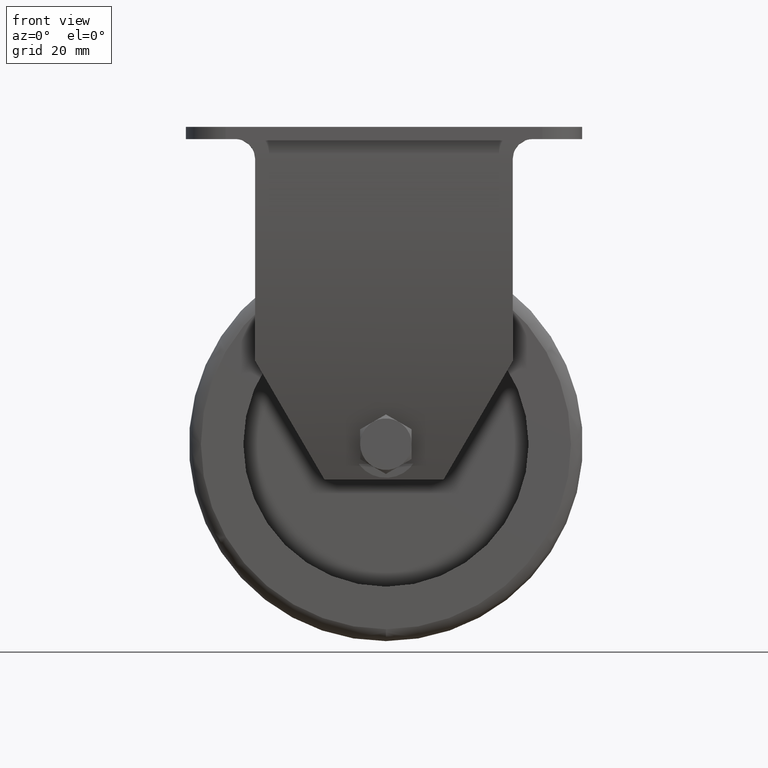
[diagram: clean part render]
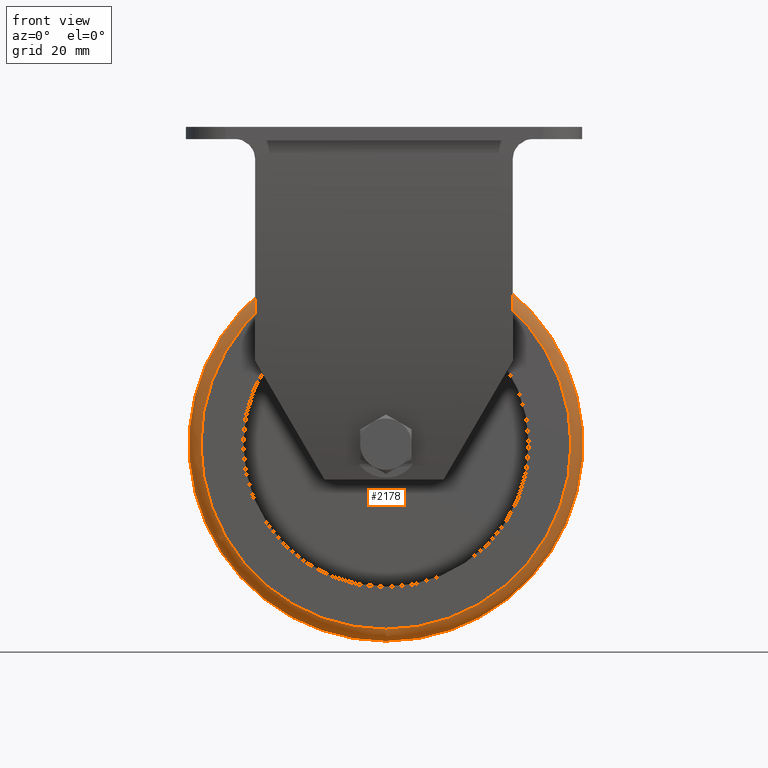
[diagram: same view with one face highlighted and labeled with its STEP entity id]
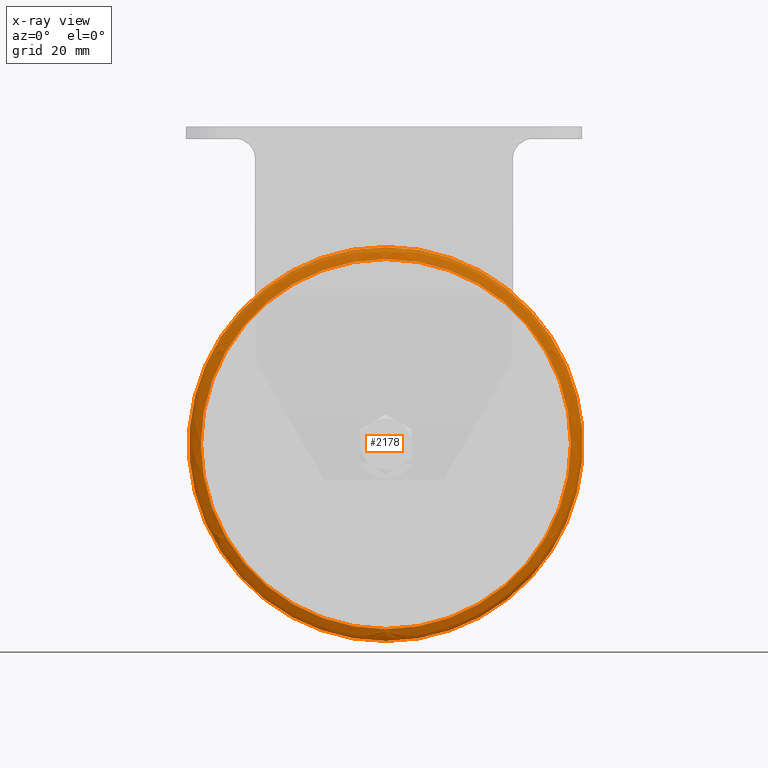
[diagram: x-ray of the same camera — body ghosted, the highlighted face saturated]
A machine part, front view. The second image highlights one B-rep face of the part: STEP entity #2178.
The next image is the same camera in x-ray: the body ghosted, the highlighted face saturated — about 2% of this face is hidden behind the body in this view.
In plain terms, the highlighted face is a freeform B-spline surface patch.
Its self-contained STEP definition (entity closure, byte-faithful):
#1814=CARTESIAN_POINT('',(-49.499989609626937,-11.999999999942840,-129.775115933132840));
#1815=VERTEX_POINT('',#1814);
#1816=CARTESIAN_POINT('',(-49.499989609626937,-11.999999999942828,-30.375038781330367));
#1817=VERTEX_POINT('',#1816);
#1818=CARTESIAN_POINT('',(-49.499989609626937,-11.999999999942833,-80.075077357231748));
#1819=DIRECTION('',(-3.157968E-016,1.0,-1.224647E-016));
#1820=DIRECTION('',(0.0,-1.224647E-016,-1.0));
#1821=AXIS2_PLACEMENT_3D('',#1818,#1819,#1820);
#1822=CIRCLE('',#1821,49.700038575901381);
#1823=EDGE_CURVE('',#1815,#1817,#1822,.T.);
#1825=CARTESIAN_POINT('',(-49.499989609626937,-11.999999999942833,-80.075077357231748));
#1826=DIRECTION('',(-3.157968E-016,1.0,-1.224647E-016));
#1827=DIRECTION('',(0.0,-1.224647E-016,-1.0));
#1828=AXIS2_PLACEMENT_3D('',#1825,#1826,#1827);
#1829=CIRCLE('',#1828,49.700038575901381);
#1830=EDGE_CURVE('',#1817,#1815,#1829,.T.);
#1865=CARTESIAN_POINT('',(-49.499989609626937,-14.999999999942828,-33.375038781330367));
#1866=VERTEX_POINT('',#1865);
#1867=CARTESIAN_POINT('',(-49.499989609626937,-14.999999999942840,-126.775115933132840));
#1868=VERTEX_POINT('',#1867);
#1869=CARTESIAN_POINT('',(-49.499989609626937,-14.999999999942833,-80.075077357231748));
#1870=DIRECTION('',(-3.157968E-016,1.0,-1.224647E-016));
#1871=DIRECTION('',(0.0,-1.224647E-016,-1.0));
#1872=AXIS2_PLACEMENT_3D('',#1869,#1870,#1871);
#1873=CIRCLE('',#1872,46.700038575901381);
#1874=EDGE_CURVE('',#1866,#1868,#1873,.T.);
#1876=CARTESIAN_POINT('',(-49.499989609626937,-14.999999999942833,-80.075077357231748));
#1877=DIRECTION('',(-3.157968E-016,1.0,-1.224647E-016));
#1878=DIRECTION('',(0.0,-1.224647E-016,-1.0));
#1879=AXIS2_PLACEMENT_3D('',#1876,#1877,#1878);
#1880=CIRCLE('',#1879,46.700038575901381);
#1881=EDGE_CURVE('',#1868,#1866,#1880,.T.);
#1890=CARTESIAN_POINT('',(-49.499989609626937,-11.999999999942840,-129.775115933133120));
#1891=CARTESIAN_POINT('',(-49.499989609626937,-12.390180643975096,-129.775115933133120));
#1892=CARTESIAN_POINT('',(-49.499989609626937,-13.179083451972669,-129.618999604785810));
#1893=CARTESIAN_POINT('',(-49.499989609626951,-14.176238734361682,-128.951354667551980));
#1894=CARTESIAN_POINT('',(-49.499989609626937,-14.843883671595499,-127.954199385162940));
#1895=CARTESIAN_POINT('',(-49.499989609626937,-14.999999999942840,-127.165296577165380));
#1896=CARTESIAN_POINT('',(-49.499989609626937,-14.999999999942840,-126.775115933133120));
#1897=CARTESIAN_POINT('',(-52.747626713279402,-11.999999999942842,-129.775115933133120));
#1898=CARTESIAN_POINT('',(-52.747626713279402,-12.390180643975096,-129.775115933133120));
#1899=CARTESIAN_POINT('',(-52.737425329237169,-13.179083451972669,-129.618999604785810));
#1900=CARTESIAN_POINT('',(-52.693798230901734,-14.176238734361682,-128.951354667551980));
#1901=CARTESIAN_POINT('',(-52.628639358072185,-14.843883671595499,-127.954199385162940));
#1902=CARTESIAN_POINT('',(-52.577088693246942,-14.999999999942840,-127.165296577165380));
#1903=CARTESIAN_POINT('',(-52.551592432620282,-14.999999999942842,-126.775115933133120));
#1904=CARTESIAN_POINT('',(-59.259826415704694,-11.999999999942844,-129.134991146755060));
#1905=CARTESIAN_POINT('',(-59.259826415704694,-12.390180643975096,-129.134991146755060));
#1906=CARTESIAN_POINT('',(-59.229169097700691,-13.179083451972666,-128.980885559932290));
#1907=CARTESIAN_POINT('',(-59.098060434236466,-14.176238734361682,-128.321839732177380));
#1908=CARTESIAN_POINT('',(-58.902244231567437,-14.843883671595497,-127.337527574872650));
#1909=CARTESIAN_POINT('',(-58.747323573907337,-14.999999999942842,-126.558785649158340));
#1910=CARTESIAN_POINT('',(-58.670701914855115,-14.999999999942846,-126.173630439885640));
#1911=CARTESIAN_POINT('',(-67.082761094596748,-11.999999999942847,-126.760024867695280));
#1912=CARTESIAN_POINT('',(-67.082761094596748,-12.390180643975105,-126.760024867695280));
#1913=CARTESIAN_POINT('',(-67.027530599710644,-13.179083451972680,-126.613379456479150));
#1914=CARTESIAN_POINT('',(-66.791332626814764,-14.176238734361695,-125.986237712860810));
#1915=CARTESIAN_POINT('',(-66.438561201124514,-14.843883671595499,-125.049575622608760));
#1916=CARTESIAN_POINT('',(-66.159464882603814,-14.999999999942846,-124.308532210218260));
#1917=CARTESIAN_POINT('',(-66.021427623509936,-14.999999999942846,-123.942022175051460));
#1918=CARTESIAN_POINT('',(-72.965853382425479,-11.999999999942844,-123.977099329290750));
#1919=CARTESIAN_POINT('',(-72.965853382425479,-12.390180643975100,-123.977099329290750));
#1920=CARTESIAN_POINT('',(-72.892143087651505,-13.179083451972673,-123.839195563545490));
#1921=CARTESIAN_POINT('',(-72.576914657359609,-14.176238734361689,-123.249438220415730));
#1922=CARTESIAN_POINT('',(-72.106107980195105,-14.843883671595508,-122.368611275982940));
#1923=CARTESIAN_POINT('',(-71.733627669255782,-14.999999999942844,-121.671742029943370));
#1924=CARTESIAN_POINT('',(-71.549403952293048,-14.999999999942844,-121.327079939164180));
#1925=CARTESIAN_POINT('',(-77.156265007659954,-11.999999999942851,-121.465640681328620));
#1926=CARTESIAN_POINT('',(-77.156265007659954,-12.390180643975109,-121.465640681328620));
#1927=CARTESIAN_POINT('',(-77.069391912696247,-13.179083451972671,-121.335625837084220));
#1928=CARTESIAN_POINT('',(-76.697871632605512,-14.176238734361695,-120.779606146870380));
#1929=CARTESIAN_POINT('',(-76.142990753343426,-14.843883671595499,-119.949167780174820));
#1930=CARTESIAN_POINT('',(-75.703994850212638,-14.999999999942849,-119.292163629541890));
#1931=CARTESIAN_POINT('',(-75.486873422231085,-14.999999999942849,-118.967218275022930));
#1932=CARTESIAN_POINT('',(-81.080196320876851,-11.999999999942847,-118.555232925542850));
#1933=CARTESIAN_POINT('',(-81.080196320876851,-12.390180643975103,-118.555232925542850));
#1934=CARTESIAN_POINT('',(-80.980997485997051,-13.179083451972673,-118.434360170235390));
#1935=CARTESIAN_POINT('',(-80.556765116531935,-14.176238734361691,-117.917437411515220));
#1936=CARTESIAN_POINT('',(-79.923156555182999,-14.843883671595513,-117.145391926409670));
#1937=CARTESIAN_POINT('',(-79.421874977431344,-14.999999999942851,-116.534585503520090));
#1938=CARTESIAN_POINT('',(-79.173947898371836,-14.999999999942851,-116.232488919446500));
#1939=CARTESIAN_POINT('',(-85.902510515728565,-11.999999999942855,-114.185273008425270));
#1940=CARTESIAN_POINT('',(-85.902510515728565,-12.390180643975105,-114.185273008425270));
#1941=CARTESIAN_POINT('',(-85.788163966524792,-13.179083451972673,-114.078127045225590));
#1942=CARTESIAN_POINT('',(-85.299151090842841,-14.176238734361691,-113.619908096365220));
#1943=CARTESIAN_POINT('',(-84.568790168519655,-14.843883671595503,-112.935539175303550));
#1944=CARTESIAN_POINT('',(-83.990962629871817,-14.999999999942846,-112.394098365565000));
#1945=CARTESIAN_POINT('',(-83.705176955282255,-14.999999999942844,-112.126309074276560));
#1946=CARTESIAN_POINT('',(-91.091389668645718,-11.999999999942847,-107.864177520596770));
#1947=CARTESIAN_POINT('',(-91.091389668645718,-12.390180643975102,-107.864177520596770));
#1948=CARTESIAN_POINT('',(-90.960743961839626,-13.179083451972666,-107.776887200309550));
#1949=CARTESIAN_POINT('',(-90.402026333492870,-14.176238734361682,-107.403582620152690));
#1950=CARTESIAN_POINT('',(-89.567558484791448,-14.843883671595501,-106.846036815064040));
#1951=CARTESIAN_POINT('',(-88.907366395704898,-14.999999999942847,-106.404932546762080));
#1952=CARTESIAN_POINT('',(-88.580844330003742,-14.999999999942853,-106.186768349922260));
#1953=CARTESIAN_POINT('',(-95.712573632165999,-11.999999999942847,-99.217263162531026));
#1954=CARTESIAN_POINT('',(-95.712573632165999,-12.390180643975107,-99.217263162531026));
#1955=CARTESIAN_POINT('',(-95.567411995520132,-13.179083451972687,-99.157134280339037));
#1956=CARTESIAN_POINT('',(-94.946615741770302,-14.176238734361698,-98.899987931831134));
#1957=CARTESIAN_POINT('',(-94.019430902657035,-14.843883671595504,-98.515929242156687));
#1958=CARTESIAN_POINT('',(-93.285885449879785,-14.999999999942847,-98.212079897855915));
#1959=CARTESIAN_POINT('',(-92.923083803986259,-14.999999999942844,-98.061800127463187));
#1960=CARTESIAN_POINT('',(-98.559343892231922,-11.999999999942853,-89.833522078089459));
#1961=CARTESIAN_POINT('',(-98.559343892231922,-12.390180643975107,-89.833522078089459));
#1962=CARTESIAN_POINT('',(-98.405240062916064,-13.179083451972675,-89.802869132863393));
#1963=CARTESIAN_POINT('',(-97.746201751291451,-14.176238734361696,-89.671779169961169));
#1964=CARTESIAN_POINT('',(-96.761900819637518,-14.843883671595513,-89.475990897353540));
#1965=CARTESIAN_POINT('',(-95.983167775135200,-14.999999999942855,-89.321092336656946));
#1966=CARTESIAN_POINT('',(-95.598016958389678,-14.999999999942855,-89.244481606463580));
#1967=CARTESIAN_POINT('',(-99.520386080968805,-11.999999999942849,-80.075091848421238));
#1968=CARTESIAN_POINT('',(-99.520386080968805,-12.390180643975103,-80.075091848421238));
#1969=CARTESIAN_POINT('',(-99.363263453636080,-13.179083451972673,-80.075091802901909));
#1970=CARTESIAN_POINT('',(-98.691314992036467,-14.176238734361691,-80.075091608234715));
#1971=CARTESIAN_POINT('',(-97.687732218304362,-14.843883671595501,-80.075091317491086));
#1972=CARTESIAN_POINT('',(-96.893744278574189,-14.999999999942844,-80.075091087468337));
#1973=CARTESIAN_POINT('',(-96.501048597259341,-14.999999999942844,-80.075090973702217));
#1974=CARTESIAN_POINT('',(-98.559280897062649,-11.999999999942855,-70.316574671616124));
#1975=CARTESIAN_POINT('',(-98.559280897062649,-12.390180643975109,-70.316574671616124));
#1976=CARTESIAN_POINT('',(-98.405177265625412,-13.179083451972684,-70.347227798919405));
#1977=CARTESIAN_POINT('',(-97.746139800245743,-14.176238734361693,-70.478318540490676));
#1978=CARTESIAN_POINT('',(-96.761840132493532,-14.843883671595517,-70.674107976072406));
#1979=CARTESIAN_POINT('',(-95.983108087931441,-14.999999999942858,-70.829007456860126));
#1980=CARTESIAN_POINT('',(-95.597957765742777,-14.999999999942858,-70.905618642118014));
#1981=CARTESIAN_POINT('',(-95.712825612843119,-11.999999999942846,-60.933094428585335));
#1982=CARTESIAN_POINT('',(-95.712825612843119,-12.390180643975103,-60.933094428585335));
#1983=CARTESIAN_POINT('',(-95.567663184682829,-13.179083451972678,-60.993222673507027));
#1984=CARTESIAN_POINT('',(-94.946863545953235,-14.176238734361695,-61.250366296673619));
#1985=CARTESIAN_POINT('',(-94.019673651232992,-14.843883671595499,-61.634420915938129));
#1986=CARTESIAN_POINT('',(-93.286124198694978,-14.999999999942842,-61.938267039920269));
#1987=CARTESIAN_POINT('',(-92.923320574573964,-14.999999999942844,-62.088545217587018));
#1988=CARTESIAN_POINT('',(-91.090444741106609,-11.999999999942842,-52.285223652013165));
#1989=CARTESIAN_POINT('',(-91.090444741106609,-12.390180643975096,-52.285223652013165));
#1990=CARTESIAN_POINT('',(-90.959802002479634,-13.179083451972671,-52.372516339304383));
#1991=CARTESIAN_POINT('',(-90.401097067807001,-14.176238734361682,-52.745831042157647));
#1992=CARTESIAN_POINT('',(-89.566648177631720,-14.843883671595503,-53.303391965911409));
#1993=CARTESIAN_POINT('',(-88.906471087648015,-14.999999999942842,-53.744508195396961));
#1994=CARTESIAN_POINT('',(-88.579956440299966,-14.999999999942840,-53.962678308076150));
#1995=CARTESIAN_POINT('',(-84.869763917249671,-11.999999999942842,-44.705303030572004));
#1996=CARTESIAN_POINT('',(-84.869763917249671,-12.390180643975100,-44.705303030572004));
#1997=CARTESIAN_POINT('',(-84.758661401887508,-13.179083451972655,-44.816405545994002));
#1998=CARTESIAN_POINT('',(-84.283521916602723,-14.176238734361682,-45.291545031534497));
#1999=CARTESIAN_POINT('',(-83.573881475702734,-14.843883671595499,-46.001185472816481));
#2000=CARTESIAN_POINT('',(-83.012447016715072,-14.999999999942840,-46.562619932106280));
#2001=CARTESIAN_POINT('',(-82.734769137299608,-14.999999999942844,-46.840297811671221));
#2002=CARTESIAN_POINT('',(-77.289843061173485,-11.999999999942839,-38.484622555572159));
#2003=CARTESIAN_POINT('',(-77.289843061173485,-12.390180643975095,-38.484622555572159));
#2004=CARTESIAN_POINT('',(-77.202550374679106,-13.179083451972673,-38.615265293163098));
#2005=CARTESIAN_POINT('',(-76.829235675233548,-14.176238734361686,-39.173970223405234));
#2006=CARTESIAN_POINT('',(-76.271674756569283,-14.843883671595492,-40.008419106962933));
#2007=CARTESIAN_POINT('',(-75.830558531110356,-14.999999999942837,-40.668596191711416));
#2008=CARTESIAN_POINT('',(-75.612388420422661,-14.999999999942837,-40.995110836470154));
#2009=CARTESIAN_POINT('',(-68.641973571998477,-11.999999999942835,-33.862240053772283));
#2010=CARTESIAN_POINT('',(-68.641973571998477,-12.390180643975089,-33.862240053772283));
#2011=CARTESIAN_POINT('',(-68.581845323829697,-13.179083451972664,-34.007402486016879));
#2012=CARTESIAN_POINT('',(-68.324701686776649,-14.176238734361672,-34.628202142213240));
#2013=CARTESIAN_POINT('',(-67.940647046771943,-14.843883671595501,-35.555392063020911));
#2014=CARTESIAN_POINT('',(-67.636800906381183,-14.999999999942833,-36.288941536198024));
#2015=CARTESIAN_POINT('',(-67.486522720598956,-14.999999999942833,-36.651745170526880));
#2016=CARTESIAN_POINT('',(-59.258488414013982,-11.999999999942830,-31.015790940949095));
#2017=CARTESIAN_POINT('',(-59.258488414013982,-12.390180643975089,-31.015790940949095));
#2018=CARTESIAN_POINT('',(-59.227835298902320,-13.179083451972662,-31.169894557085200));
#2019=CARTESIAN_POINT('',(-59.096744609469496,-14.176238734361677,-31.828931957028352));
#2020=CARTESIAN_POINT('',(-58.900955251758589,-14.843883671595492,-32.813231527048202));
#2021=CARTESIAN_POINT('',(-58.746055832578804,-14.999999999942833,-33.591963494289161));
#2022=CARTESIAN_POINT('',(-58.669444677791290,-14.999999999942833,-33.977113778235818));
#2023=CARTESIAN_POINT('',(-49.499989609626937,-11.999999999942830,-30.054662701521000));
#2024=CARTESIAN_POINT('',(-49.499989609626937,-12.390180643975084,-30.054662701521000));
#2025=CARTESIAN_POINT('',(-49.499989609626930,-13.179083451972652,-30.211785385973982));
#2026=CARTESIAN_POINT('',(-49.499989609626972,-14.176238734361668,-30.883734091853107));
#2027=CARTESIAN_POINT('',(-49.499989609626937,-14.843883671595485,-31.887317230426710));
#2028=CARTESIAN_POINT('',(-49.499989609626937,-14.999999999942832,-32.681305458802584));
#2029=CARTESIAN_POINT('',(-49.499989609626930,-14.999999999942832,-33.074001282877646));
#2030=CARTESIAN_POINT('',(-39.741490805239920,-11.999999999942826,-31.015790940949095));
#2031=CARTESIAN_POINT('',(-39.741490805239920,-12.390180643975082,-31.015790940949095));
#2032=CARTESIAN_POINT('',(-39.772143920351624,-13.179083451972659,-31.169894557085200));
#2033=CARTESIAN_POINT('',(-39.903234609784420,-14.176238734361668,-31.828931957028356));
#2034=CARTESIAN_POINT('',(-40.099023967495270,-14.843883671595488,-32.813231527048210));
#2035=CARTESIAN_POINT('',(-40.253923386675112,-14.999999999942823,-33.591963494289161));
#2036=CARTESIAN_POINT('',(-40.330534541462626,-14.999999999942823,-33.977113778235818));
#2037=CARTESIAN_POINT('',(-30.358005647255368,-11.999999999942823,-33.862240053772275));
#2038=CARTESIAN_POINT('',(-30.358005647255368,-12.390180643975077,-33.862240053772275));
#2039=CARTESIAN_POINT('',(-30.418133895424138,-13.179083451972652,-34.007402486016886));
#2040=CARTESIAN_POINT('',(-30.675277532477274,-14.176238734361664,-34.628202142213240));
#2041=CARTESIAN_POINT('',(-31.059332172481906,-14.843883671595488,-35.555392063020903));
#2042=CARTESIAN_POINT('',(-31.363178312872670,-14.999999999942826,-36.288941536198024));
#2043=CARTESIAN_POINT('',(-31.513456498654890,-14.999999999942826,-36.651745170526887));
#2044=CARTESIAN_POINT('',(-21.710136158080417,-11.999999999942826,-38.484622555572152));
#2045=CARTESIAN_POINT('',(-21.710136158080417,-12.390180643975084,-38.484622555572152));
#2046=CARTESIAN_POINT('',(-21.797428844574817,-13.179083451972655,-38.615265293163091));
#2047=CARTESIAN_POINT('',(-22.170743544020379,-14.176238734361670,-39.173970223405234));
#2048=CARTESIAN_POINT('',(-22.728304462684580,-14.843883671595485,-40.008419106962911));
#2049=CARTESIAN_POINT('',(-23.169420688143536,-14.999999999942823,-40.668596191711408));
#2050=CARTESIAN_POINT('',(-23.387590798831219,-14.999999999942823,-40.995110836470147));
#2051=CARTESIAN_POINT('',(-14.130215302004181,-11.999999999942814,-44.705303030571969));
#2052=CARTESIAN_POINT('',(-14.130215302004181,-12.390180643975071,-44.705303030571969));
#2053=CARTESIAN_POINT('',(-14.241317817366362,-13.179083451972646,-44.816405545993938));
#2054=CARTESIAN_POINT('',(-14.716457302651136,-14.176238734361663,-45.291545031534483));
#2055=CARTESIAN_POINT('',(-15.426097743551207,-14.843883671595473,-46.001185472816481));
#2056=CARTESIAN_POINT('',(-15.987532202538802,-14.999999999942819,-46.562619932106266));
#2057=CARTESIAN_POINT('',(-16.265210081954280,-14.999999999942819,-46.840297811671199));
#2058=CARTESIAN_POINT('',(-7.909534478147298,-11.999999999942821,-52.285223652013144));
#2059=CARTESIAN_POINT('',(-7.909534478147298,-12.390180643975075,-52.285223652013144));
#2060=CARTESIAN_POINT('',(-8.040177216774255,-13.179083451972648,-52.372516339304397));
#2061=CARTESIAN_POINT('',(-8.598882151447018,-14.176238734361661,-52.745831042157640));
#2062=CARTESIAN_POINT('',(-9.433331041622068,-14.843883671595481,-53.303391965911345));
#2063=CARTESIAN_POINT('',(-10.093508131605867,-14.999999999942819,-53.744508195396932));
#2064=CARTESIAN_POINT('',(-10.420022778953928,-14.999999999942819,-53.962678308076136));
#2065=CARTESIAN_POINT('',(-3.287153606410739,-11.999999999942814,-60.933094428585335));
#2066=CARTESIAN_POINT('',(-3.287153606410739,-12.390180643975070,-60.933094428585335));
#2067=CARTESIAN_POINT('',(-3.432316034571065,-13.179083451972648,-60.993222673506978));
#2068=CARTESIAN_POINT('',(-4.053115673300614,-14.176238734361657,-61.250366296673633));
#2069=CARTESIAN_POINT('',(-4.980305568020898,-14.843883671595474,-61.634420915938122));
#2070=CARTESIAN_POINT('',(-5.713855020558872,-14.999999999942816,-61.938267039920277));
#2071=CARTESIAN_POINT('',(-6.076658644679901,-14.999999999942816,-62.088545217587018));
#2072=CARTESIAN_POINT('',(-0.440698322191266,-11.999999999942821,-70.316574671616053));
#2073=CARTESIAN_POINT('',(-0.440698322191266,-12.390180643975075,-70.316574671616053));
#2074=CARTESIAN_POINT('',(-0.594801953628500,-13.179083451972645,-70.347227798919363));
#2075=CARTESIAN_POINT('',(-1.253839419008205,-14.176238734361661,-70.478318540490591));
#2076=CARTESIAN_POINT('',(-2.238139086760336,-14.843883671595483,-70.674107976072335));
#2077=CARTESIAN_POINT('',(-3.016871131322473,-14.999999999942819,-70.829007456860055));
#2078=CARTESIAN_POINT('',(-3.402021453511142,-14.999999999942819,-70.905618642117958));
#2079=CARTESIAN_POINT('',(0.520406861714976,-11.999999999942819,-80.075091848421224));
#2080=CARTESIAN_POINT('',(0.520406861714977,-12.390180643975079,-80.075091848421224));
#2081=CARTESIAN_POINT('',(0.363284234382240,-13.179083451972655,-80.075091802901937));
#2082=CARTESIAN_POINT('',(-0.308664227217403,-14.176238734361668,-80.075091608234686));
#2083=CARTESIAN_POINT('',(-1.312247000949425,-14.843883671595476,-80.075091317491115));
#2084=CARTESIAN_POINT('',(-2.106234940679664,-14.999999999942819,-80.075091087468380));
#2085=CARTESIAN_POINT('',(-2.498930621994496,-14.999999999942819,-80.075090973702203));
#2086=CARTESIAN_POINT('',(-0.440635327021974,-11.999999999942824,-89.833522078089473));
#2087=CARTESIAN_POINT('',(-0.440635327021974,-12.390180643975079,-89.833522078089473));
#2088=CARTESIAN_POINT('',(-0.594739156337817,-13.179083451972655,-89.802869132863378));
#2089=CARTESIAN_POINT('',(-1.253777467962456,-14.176238734361661,-89.671779169961184));
#2090=CARTESIAN_POINT('',(-2.238078399616340,-14.843883671595478,-89.475990897353526));
#2091=CARTESIAN_POINT('',(-3.016811444118665,-14.999999999942819,-89.321092336656932));
#2092=CARTESIAN_POINT('',(-3.401962260864207,-14.999999999942819,-89.244481606463609));
#2093=CARTESIAN_POINT('',(-3.287405587087873,-11.999999999942819,-99.217263162531012));
#2094=CARTESIAN_POINT('',(-3.287405587087872,-12.390180643975077,-99.217263162531012));
#2095=CARTESIAN_POINT('',(-3.432567223733759,-13.179083451972645,-99.157134280339093));
#2096=CARTESIAN_POINT('',(-4.053363477483572,-14.176238734361668,-98.899987931831134));
#2097=CARTESIAN_POINT('',(-4.980548316596851,-14.843883671595483,-98.515929242156773));
#2098=CARTESIAN_POINT('',(-5.714093769374069,-14.999999999942823,-98.212079897855986));
#2099=CARTESIAN_POINT('',(-6.076895415267602,-14.999999999942823,-98.061800127463229));
#2100=CARTESIAN_POINT('',(-7.908589550608089,-11.999999999942830,-107.864177520596750));
#2101=CARTESIAN_POINT('',(-7.908589550608091,-12.390180643975086,-107.864177520596750));
#2102=CARTESIAN_POINT('',(-8.039235257414195,-13.179083451972666,-107.776887200309490));
#2103=CARTESIAN_POINT('',(-8.597952885760961,-14.176238734361668,-107.403582620152660));
#2104=CARTESIAN_POINT('',(-9.432420734462291,-14.843883671595496,-106.846036815064000));
#2105=CARTESIAN_POINT('',(-10.092612823548915,-14.999999999942826,-106.404932546762010));
#2106=CARTESIAN_POINT('',(-10.419134889250088,-14.999999999942826,-106.186768349922200));
#2107=CARTESIAN_POINT('',(-13.097468703525340,-11.999999999942826,-114.185273008425280));
#2108=CARTESIAN_POINT('',(-13.097468703525340,-12.390180643975086,-114.185273008425280));
#2109=CARTESIAN_POINT('',(-13.211815252729101,-13.179083451972655,-114.078127045225710));
#2110=CARTESIAN_POINT('',(-13.700828128411086,-14.176238734361672,-113.619908096365180));
#2111=CARTESIAN_POINT('',(-14.431189050734320,-14.843883671595488,-112.935539175303520));
#2112=CARTESIAN_POINT('',(-15.009016589382115,-14.999999999942826,-112.394098365565040));
#2113=CARTESIAN_POINT('',(-15.294802263971663,-14.999999999942826,-112.126309074276590));
#2114=CARTESIAN_POINT('',(-17.919782898377001,-11.999999999942828,-118.555232925542840));
#2115=CARTESIAN_POINT('',(-17.919782898377001,-12.390180643975084,-118.555232925542840));
#2116=CARTESIAN_POINT('',(-18.018981733256791,-13.179083451972655,-118.434360170235290));
#2117=CARTESIAN_POINT('',(-18.443214102721942,-14.176238734361672,-117.917437411515250));
#2118=CARTESIAN_POINT('',(-19.076822664070793,-14.843883671595488,-117.145391926409670));
#2119=CARTESIAN_POINT('',(-19.578104241822512,-14.999999999942830,-116.534585503520050));
#2120=CARTESIAN_POINT('',(-19.826031320882006,-14.999999999942830,-116.232488919446450));
#2121=CARTESIAN_POINT('',(-21.843714211593905,-11.999999999942833,-121.465640681328570));
#2122=CARTESIAN_POINT('',(-21.843714211593905,-12.390180643975089,-121.465640681328570));
#2123=CARTESIAN_POINT('',(-21.930587306557616,-13.179083451972650,-121.335625837084190));
#2124=CARTESIAN_POINT('',(-22.302107586648365,-14.176238734361670,-120.779606146870320));
#2125=CARTESIAN_POINT('',(-22.856988465910437,-14.843883671595483,-119.949167780174720));
#2126=CARTESIAN_POINT('',(-23.295984369041211,-14.999999999942830,-119.292163629541850));
#2127=CARTESIAN_POINT('',(-23.513105797022760,-14.999999999942830,-118.967218275022900));
#2128=CARTESIAN_POINT('',(-26.034125836828402,-11.999999999942832,-123.977099329290780));
#2129=CARTESIAN_POINT('',(-26.034125836828402,-12.390180643975087,-123.977099329290780));
#2130=CARTESIAN_POINT('',(-26.107836131602376,-13.179083451972669,-123.839195563545500));
#2131=CARTESIAN_POINT('',(-26.423064561894286,-14.176238734361677,-123.249438220415730));
#2132=CARTESIAN_POINT('',(-26.893871239058740,-14.843883671595499,-122.368611275982990));
#2133=CARTESIAN_POINT('',(-27.266351549998099,-14.999999999942833,-121.671742029943400));
#2134=CARTESIAN_POINT('',(-27.450575266960833,-14.999999999942833,-121.327079939164180));
#2135=CARTESIAN_POINT('',(-31.917218124657055,-11.999999999942837,-126.760024867695250));
#2136=CARTESIAN_POINT('',(-31.917218124657055,-12.390180643975091,-126.760024867695250));
#2137=CARTESIAN_POINT('',(-31.972448619543151,-13.179083451972652,-126.613379456479070));
#2138=CARTESIAN_POINT('',(-32.208646592439095,-14.176238734361673,-125.986237712860860));
#2139=CARTESIAN_POINT('',(-32.561418018129267,-14.843883671595492,-125.049575622608690));
#2140=CARTESIAN_POINT('',(-32.840514336649996,-14.999999999942832,-124.308532210218260));
#2141=CARTESIAN_POINT('',(-32.978551595743873,-14.999999999942832,-123.942022175051480));
#2142=CARTESIAN_POINT('',(-39.740152803549151,-11.999999999942837,-129.134991146755030));
#2143=CARTESIAN_POINT('',(-39.740152803549151,-12.390180643975093,-129.134991146755030));
#2144=CARTESIAN_POINT('',(-39.770810121553161,-13.179083451972666,-128.980885559932200));
#2145=CARTESIAN_POINT('',(-39.901918785017429,-14.176238734361686,-128.321839732177380));
#2146=CARTESIAN_POINT('',(-40.097734987686358,-14.843883671595492,-127.337527574872640));
#2147=CARTESIAN_POINT('',(-40.252655645346522,-14.999999999942840,-126.558785649158300));
#2148=CARTESIAN_POINT('',(-40.329277304398744,-14.999999999942840,-126.173630439885570));
#2149=CARTESIAN_POINT('',(-46.252352505974457,-11.999999999942839,-129.775115933133120));
#2150=CARTESIAN_POINT('',(-46.252352505974457,-12.390180643975096,-129.775115933133120));
#2151=CARTESIAN_POINT('',(-46.262553890016690,-13.179083451972669,-129.618999604785810));
#2152=CARTESIAN_POINT('',(-46.306180988352146,-14.176238734361682,-128.951354667551980));
#2153=CARTESIAN_POINT('',(-46.371339861181653,-14.843883671595499,-127.954199385162940));
#2154=CARTESIAN_POINT('',(-46.422890526006917,-14.999999999942840,-127.165296577165380));
#2155=CARTESIAN_POINT('',(-46.448386786633577,-14.999999999942839,-126.775115933133120));
#2156=CARTESIAN_POINT('',(-49.499989609626923,-11.999999999942840,-129.775115933133120));
#2157=CARTESIAN_POINT('',(-49.499989609626923,-12.390180643975096,-129.775115933133120));
#2158=CARTESIAN_POINT('',(-49.499989609626930,-13.179083451972669,-129.618999604785810));
#2159=CARTESIAN_POINT('',(-49.499989609626930,-14.176238734361682,-128.951354667551980));
#2160=CARTESIAN_POINT('',(-49.499989609626915,-14.843883671595499,-127.954199385162940));
#2161=CARTESIAN_POINT('',(-49.499989609626923,-14.999999999942840,-127.165296577165380));
#2162=CARTESIAN_POINT('',(-49.499989609626923,-14.999999999942840,-126.775115933133120));
#2163=B_SPLINE_SURFACE_WITH_KNOTS('',3,3,((#1890,#1897,#1904,#1911,#1918,#1925,#1932,#1939,#1946,#1953,#1960,#1967,#1974,#1981,#1988,#1995,#2002,#2009,#2016,#2023,#2030,#2037,#2044,#2051,#2058,#2065,#2072,#2079,#2086,#2093,#2100,#2107,#2114,#2121,#2128,#2135,#2142,#2149,#2156),(#1891,#1898,#1905,#1912,#1919,#1926,#1933,#1940,#1947,#1954,#1961,#1968,#1975,#1982,#1989,#1996,#2003,#2010,#2017,#2024,#2031,#2038,#2045,#2052,#2059,#2066,#2073,#2080,#2087,#2094,#2101,#2108,#2115,#2122,#2129,#2136,#2143,#2150,#2157),(#1892,#1899,#1906,#1913,#1920,#1927,#1934,#1941,#1948,#1955,#1962,#1969,#1976,#1983,#1990,#1997,#2004,#2011,#2018,#2025,#2032,#2039,#2046,#2053,#2060,#2067,#2074,#2081,#2088,#2095,#2102,#2109,#2116,#2123,#2130,#2137,#2144,#2151,#2158),(#1893,#1900,#1907,#1914,#1921,#1928,#1935,#1942,#1949,#1956,#1963,#1970,#1977,#1984,#1991,#1998,#2005,#2012,#2019,#2026,#2033,#2040,#2047,#2054,#2061,#2068,#2075,#2082,#2089,#2096,#2103,#2110,#2117,#2124,#2131,#2138,#2145,#2152,#2159),(#1894,#1901,#1908,#1915,#1922,#1929,#1936,#1943,#1950,#1957,#1964,#1971,#1978,#1985,#1992,#1999,#2006,#2013,#2020,#2027,#2034,#2041,#2048,#2055,#2062,#2069,#2076,#2083,#2090,#2097,#2104,#2111,#2118,#2125,#2132,#2139,#2146,#2153,#2160),(#1895,#1902,#1909,#1916,#1923,#1930,#1937,#1944,#1951,#1958,#1965,#1972,#1979,#1986,#1993,#2000,#2007,#2014,#2021,#2028,#2035,#2042,#2049,#2056,#2063,#2070,#2077,#2084,#2091,#2098,#2105,#2112,#2119,#2126,#2133,#2140,#2147,#2154,#2161),(#1896,#1903,#1910,#1917,#1924,#1931,#1938,#1945,#1952,#1959,#1966,#1973,#1980,#1987,#1994,#2001,#2008,#2015,#2022,#2029,#2036,#2043,#2050,#2057,#2064,#2071,#2078,#2085,#2092,#2099,#2106,#2113,#2120,#2127,#2134,#2141,#2148,#2155,#2162)),.UNSPECIFIED.,.F.,.T.,.U.,(4,1,1,1,4),(4,1,1,1,1,1,1,1,1,1,1,1,1,1,1,1,1,1,1,1,1,1,1,1,1,1,1,1,1,1,1,1,1,1,1,1,4),(0.0,1.170541932096769,2.341083864193542,3.511625796290311,4.682167728387078),(0.0,9.509278017468196,19.018556034936388,23.778929121533018,28.539302208129648,33.299675294726271,38.060048381322893,47.569326398791091,57.078604416259296,66.587882433727486,76.097160451195691,85.606438468663882,95.115716486132072,104.624994503600260,114.134272521068480,123.643550538536690,133.152828556004860,142.662106573473070,152.171384590941270,161.680662608409480,171.189940625877680,180.699218643345890,190.208496660814090,199.717774678282300,209.227052695750440,218.736330713218650,228.245608730686850,237.754886748155060,247.264164765623260,256.773442783091470,266.282720800559620,271.043093887156260,275.803466973752900,280.563840060349490,285.324213146946140,294.833491164414340,304.342769181882550),.UNSPECIFIED.);
#2164=ORIENTED_EDGE('',*,*,#1830,.F.);
#2165=ORIENTED_EDGE('',*,*,#1823,.F.);
#2166=CARTESIAN_POINT('',(-49.499989609626937,-11.999999999942840,-126.775115933132840));
#2167=DIRECTION('',(-1.0,0.0,0.0));
#2168=DIRECTION('',(0.0,-1.224647E-016,-1.0));
#2169=AXIS2_PLACEMENT_3D('',#2166,#2167,#2168);
#2170=CIRCLE('',#2169,3.0);
#2171=EDGE_CURVE('',#1815,#1868,#2170,.T.);
#2172=ORIENTED_EDGE('',*,*,#2171,.T.);
#2173=ORIENTED_EDGE('',*,*,#1881,.T.);
#2174=ORIENTED_EDGE('',*,*,#1874,.T.);
#2175=ORIENTED_EDGE('',*,*,#2171,.F.);
#2176=EDGE_LOOP('',(#2164,#2165,#2172,#2173,#2174,#2175));
#2177=FACE_OUTER_BOUND('',#2176,.T.);
#2178=ADVANCED_FACE('',(#2177),#2163,.T.);